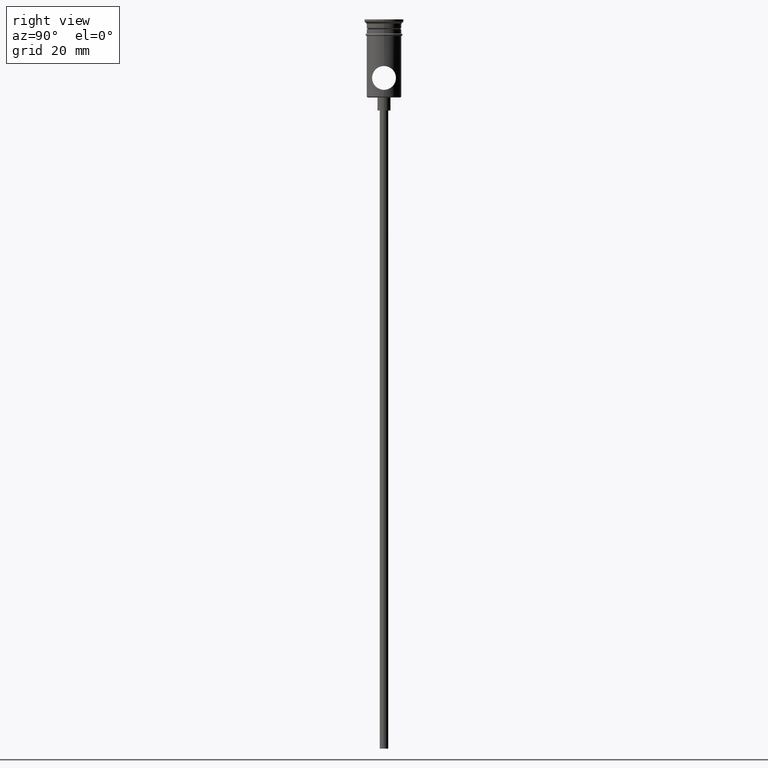
[diagram: clean part render]
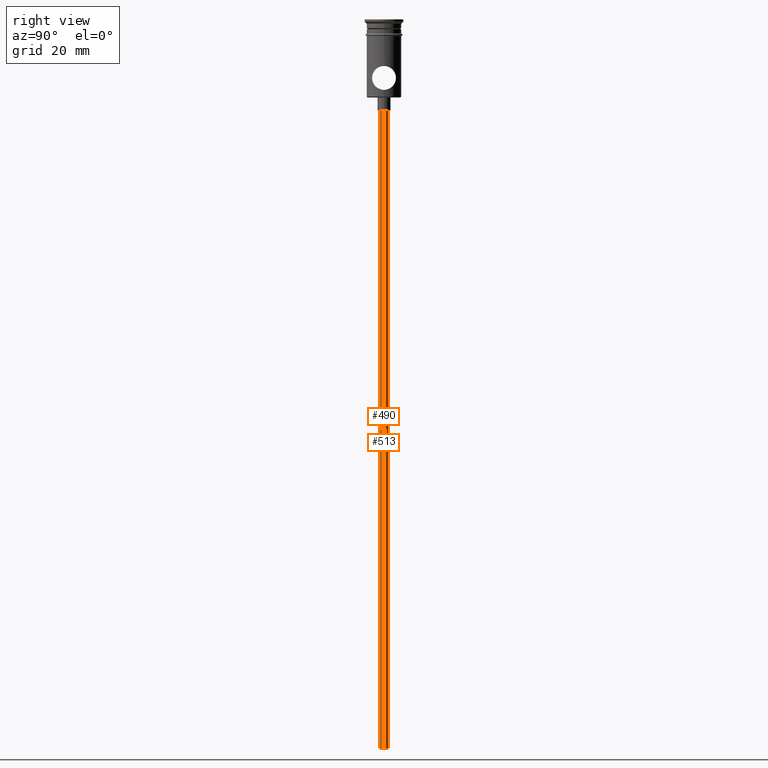
[diagram: same view with one multi-face feature highlighted, each face labeled with its STEP entity id]
A machine part, right view. The highlighted faces form ONE feature: a constant-radius fillet chain: 2 tangent blend faces with common blend radius 1 mm. The faces share edges in the B-rep.
Their STEP definitions:
[1] entity #490 (Cylinder):
#24 = CARTESIAN_POINT ( 'NONE',  ( 0.000000000000000000, 0.000000000000000000, -167.9999999999999716 ) ) ;
#59 = CARTESIAN_POINT ( 'NONE',  ( 0.000000000000000000, 0.000000000000000000, -20.99999999999999645 ) ) ;
#70 = EDGE_CURVE ( 'NONE', #605, #1309, #562, .T. ) ;
#77 = DIRECTION ( 'NONE',  ( -0.000000000000000000, -0.000000000000000000, 1.000000000000000000 ) ) ;
#205 = DIRECTION ( 'NONE',  ( 1.000000000000000000, 0.000000000000000000, 0.000000000000000000 ) ) ;
#259 = CARTESIAN_POINT ( 'NONE',  ( -0.9999999999999997780, 1.224646799147352961E-16, -167.9999999999999716 ) ) ;
#361 = DIRECTION ( 'NONE',  ( 0.000000000000000000, 0.000000000000000000, -1.000000000000000000 ) ) ;
#438 = CIRCLE ( 'NONE', #963, 0.9999999999999997780 ) ;
#445 = DIRECTION ( 'NONE',  ( 0.000000000000000000, 0.000000000000000000, -1.000000000000000000 ) ) ;
#490 = ADVANCED_FACE ( 'NONE', ( #745 ), #1204, .T. ) ;
#514 = CARTESIAN_POINT ( 'NONE',  ( -0.9999999999999997780, 1.224646799147352961E-16, -20.99999999999999645 ) ) ;
#522 = DIRECTION ( 'NONE',  ( -0.000000000000000000, -0.000000000000000000, 1.000000000000000000 ) ) ;
#545 = ORIENTED_EDGE ( 'NONE', *, *, #882, .F. ) ;
#562 = LINE ( 'NONE', #695, #1034 ) ;
#566 = VERTEX_POINT ( 'NONE', #514 ) ;
#605 = VERTEX_POINT ( 'NONE', #1045 ) ;
#652 = EDGE_LOOP ( 'NONE', ( #545, #828, #1393, #1059 ) ) ;
#666 = DIRECTION ( 'NONE',  ( -0.000000000000000000, -0.000000000000000000, 1.000000000000000000 ) ) ;
#689 = LINE ( 'NONE', #1260, #863 ) ;
#695 = CARTESIAN_POINT ( 'NONE',  ( 0.9999999999999997780, 0.000000000000000000, -167.9999999999999716 ) ) ;
#745 = FACE_OUTER_BOUND ( 'NONE', #652, .T. ) ;
#828 = ORIENTED_EDGE ( 'NONE', *, *, #1233, .F. ) ;
#863 = VECTOR ( 'NONE', #77, 1000.000000000000000 ) ;
#866 = VERTEX_POINT ( 'NONE', #259 ) ;
#882 = EDGE_CURVE ( 'NONE', #866, #566, #689, .T. ) ;
#910 = CIRCLE ( 'NONE', #1335, 0.9999999999999997780 ) ;
#930 = EDGE_CURVE ( 'NONE', #1309, #566, #910, .T. ) ;
#959 = CARTESIAN_POINT ( 'NONE',  ( 0.000000000000000000, 0.000000000000000000, -167.9999999999999716 ) ) ;
#963 = AXIS2_PLACEMENT_3D ( 'NONE', #24, #445, #1328 ) ;
#987 = AXIS2_PLACEMENT_3D ( 'NONE', #959, #522, #205 ) ;
#1034 = VECTOR ( 'NONE', #666, 1000.000000000000000 ) ;
#1045 = CARTESIAN_POINT ( 'NONE',  ( 0.9999999999999997780, 0.000000000000000000, -167.9999999999999716 ) ) ;
#1059 = ORIENTED_EDGE ( 'NONE', *, *, #930, .T. ) ;
#1116 = CARTESIAN_POINT ( 'NONE',  ( 0.9999999999999997780, 0.000000000000000000, -20.99999999999999645 ) ) ;
#1135 = DIRECTION ( 'NONE',  ( -1.000000000000000000, 0.000000000000000000, 0.000000000000000000 ) ) ;
#1204 = CYLINDRICAL_SURFACE ( 'NONE', #987, 0.9999999999999997780 ) ;
#1233 = EDGE_CURVE ( 'NONE', #605, #866, #438, .T. ) ;
#1260 = CARTESIAN_POINT ( 'NONE',  ( -0.9999999999999997780, 1.224646799147352961E-16, -167.9999999999999716 ) ) ;
#1309 = VERTEX_POINT ( 'NONE', #1116 ) ;
#1328 = DIRECTION ( 'NONE',  ( -1.000000000000000000, 0.000000000000000000, 0.000000000000000000 ) ) ;
#1335 = AXIS2_PLACEMENT_3D ( 'NONE', #59, #361, #1135 ) ;
#1393 = ORIENTED_EDGE ( 'NONE', *, *, #70, .T. ) ;
[2] entity #513 (Cylinder):
#70 = EDGE_CURVE ( 'NONE', #605, #1309, #562, .T. ) ;
#77 = DIRECTION ( 'NONE',  ( -0.000000000000000000, -0.000000000000000000, 1.000000000000000000 ) ) ;
#120 = ORIENTED_EDGE ( 'NONE', *, *, #70, .F. ) ;
#153 = AXIS2_PLACEMENT_3D ( 'NONE', #809, #1120, #266 ) ;
#209 = FACE_OUTER_BOUND ( 'NONE', #1103, .T. ) ;
#259 = CARTESIAN_POINT ( 'NONE',  ( -0.9999999999999997780, 1.224646799147352961E-16, -167.9999999999999716 ) ) ;
#266 = DIRECTION ( 'NONE',  ( -1.000000000000000000, 0.000000000000000000, 0.000000000000000000 ) ) ;
#286 = DIRECTION ( 'NONE',  ( 0.000000000000000000, 0.000000000000000000, -1.000000000000000000 ) ) ;
#463 = CIRCLE ( 'NONE', #153, 0.9999999999999997780 ) ;
#513 = ADVANCED_FACE ( 'NONE', ( #209 ), #632, .T. ) ;
#514 = CARTESIAN_POINT ( 'NONE',  ( -0.9999999999999997780, 1.224646799147352961E-16, -20.99999999999999645 ) ) ;
#541 = ORIENTED_EDGE ( 'NONE', *, *, #882, .T. ) ;
#562 = LINE ( 'NONE', #695, #1034 ) ;
#566 = VERTEX_POINT ( 'NONE', #514 ) ;
#605 = VERTEX_POINT ( 'NONE', #1045 ) ;
#612 = EDGE_CURVE ( 'NONE', #866, #605, #630, .T. ) ;
#630 = CIRCLE ( 'NONE', #1299, 0.9999999999999997780 ) ;
#632 = CYLINDRICAL_SURFACE ( 'NONE', #1178, 0.9999999999999997780 ) ;
#648 = CARTESIAN_POINT ( 'NONE',  ( 0.000000000000000000, 0.000000000000000000, -167.9999999999999716 ) ) ;
#666 = DIRECTION ( 'NONE',  ( -0.000000000000000000, -0.000000000000000000, 1.000000000000000000 ) ) ;
#689 = LINE ( 'NONE', #1260, #863 ) ;
#695 = CARTESIAN_POINT ( 'NONE',  ( 0.9999999999999997780, 0.000000000000000000, -167.9999999999999716 ) ) ;
#719 = CARTESIAN_POINT ( 'NONE',  ( 0.000000000000000000, 0.000000000000000000, -167.9999999999999716 ) ) ;
#809 = CARTESIAN_POINT ( 'NONE',  ( 0.000000000000000000, 0.000000000000000000, -20.99999999999999645 ) ) ;
#863 = VECTOR ( 'NONE', #77, 1000.000000000000000 ) ;
#866 = VERTEX_POINT ( 'NONE', #259 ) ;
#882 = EDGE_CURVE ( 'NONE', #866, #566, #689, .T. ) ;
#940 = EDGE_CURVE ( 'NONE', #566, #1309, #463, .T. ) ;
#953 = DIRECTION ( 'NONE',  ( -0.000000000000000000, -0.000000000000000000, 1.000000000000000000 ) ) ;
#1034 = VECTOR ( 'NONE', #666, 1000.000000000000000 ) ;
#1045 = CARTESIAN_POINT ( 'NONE',  ( 0.9999999999999997780, 0.000000000000000000, -167.9999999999999716 ) ) ;
#1103 = EDGE_LOOP ( 'NONE', ( #1261, #541, #1108, #120 ) ) ;
#1108 = ORIENTED_EDGE ( 'NONE', *, *, #940, .T. ) ;
#1116 = CARTESIAN_POINT ( 'NONE',  ( 0.9999999999999997780, 0.000000000000000000, -20.99999999999999645 ) ) ;
#1120 = DIRECTION ( 'NONE',  ( 0.000000000000000000, 0.000000000000000000, -1.000000000000000000 ) ) ;
#1178 = AXIS2_PLACEMENT_3D ( 'NONE', #648, #953, #1408 ) ;
#1260 = CARTESIAN_POINT ( 'NONE',  ( -0.9999999999999997780, 1.224646799147352961E-16, -167.9999999999999716 ) ) ;
#1261 = ORIENTED_EDGE ( 'NONE', *, *, #612, .F. ) ;
#1299 = AXIS2_PLACEMENT_3D ( 'NONE', #719, #286, #1365 ) ;
#1309 = VERTEX_POINT ( 'NONE', #1116 ) ;
#1365 = DIRECTION ( 'NONE',  ( -1.000000000000000000, 0.000000000000000000, 0.000000000000000000 ) ) ;
#1408 = DIRECTION ( 'NONE',  ( 1.000000000000000000, 0.000000000000000000, 0.000000000000000000 ) ) ;